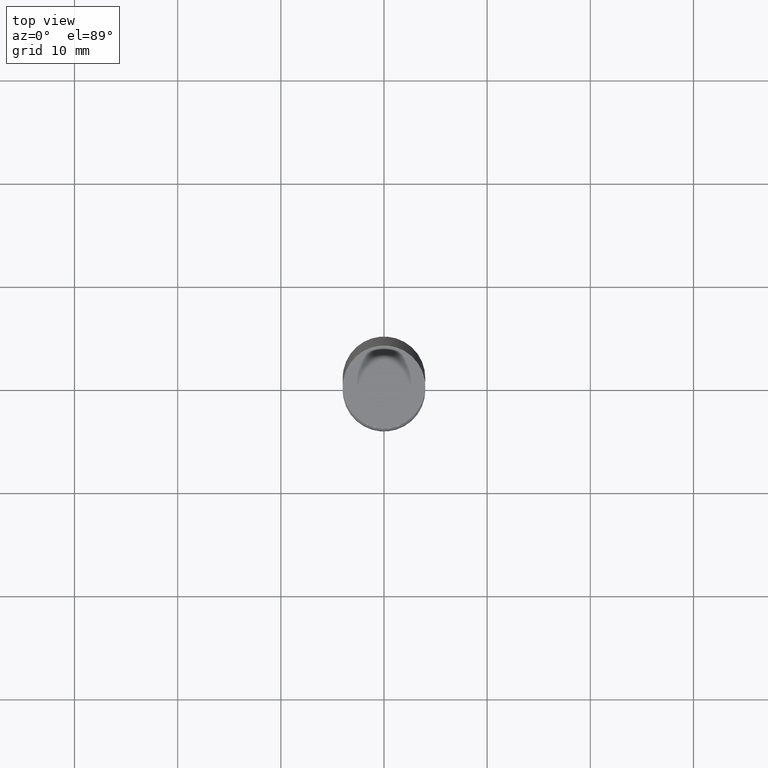
[diagram: clean part render]
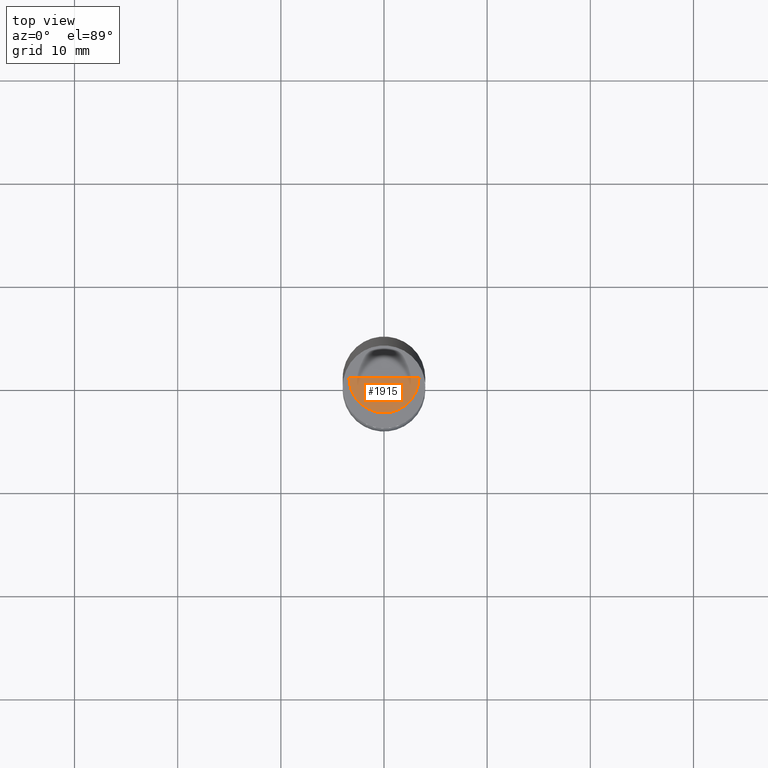
[diagram: same view with one face highlighted and labeled with its STEP entity id]
A machine part, top view. The second image highlights one B-rep face of the part: STEP entity #1915.
In plain terms, the highlighted face is a freeform B-spline surface patch.
Its self-contained STEP definition (entity closure, byte-faithful):
#1603=CARTESIAN_POINT('',(3.4,0.0,50.0));
#1607=CARTESIAN_POINT('',(-3.4,0.0,50.0));
#1608=CARTESIAN_POINT('',(0.0,0.0,50.0));
#1612=CARTESIAN_POINT('',(-3.4,-3.4,50.0));
#1613=CARTESIAN_POINT('',(0.0,-3.4,50.0));
#1614=CARTESIAN_POINT('',(3.4,-3.4,50.0));
#1900=(
BOUNDED_SURFACE()
B_SPLINE_SURFACE(1,2,(
(#1607,#1612,#1613,#1614,#1603),
(#1608,#1608,#1608,#1608,#1608)
), .UNSPECIFIED.,.F.,.F.,.F.)
B_SPLINE_SURFACE_WITH_KNOTS((2,2),(3,2,3),(
0.0,1.0),(
0.0,0.5,1.0), .UNSPECIFIED.)
GEOMETRIC_REPRESENTATION_ITEM()
RATIONAL_B_SPLINE_SURFACE(((1.0,0.707106781187,1.0,0.707106781187,1.0),
(1.0,0.707106781187,1.0,0.707106781187,1.0)
))
REPRESENTATION_ITEM('')
SURFACE()
);
#1901=(
BOUNDED_CURVE()
B_SPLINE_CURVE(1,(#1608,#1603),.UNSPECIFIED.,.F.,.F.)
B_SPLINE_CURVE_WITH_KNOTS((2,2),
(0.0,1.0),.UNSPECIFIED.)
CURVE()
GEOMETRIC_REPRESENTATION_ITEM()
RATIONAL_B_SPLINE_CURVE((1.0,1.0))
REPRESENTATION_ITEM('')
);
#1902=(
BOUNDED_CURVE()
B_SPLINE_CURVE(2,(#1603,#1614,#1613,#1612,#1607),.UNSPECIFIED.,.F.,.F.)
B_SPLINE_CURVE_WITH_KNOTS((3,2,3),
(0.0,0.5,1.0),.UNSPECIFIED.)
CURVE()
GEOMETRIC_REPRESENTATION_ITEM()
RATIONAL_B_SPLINE_CURVE((1.0,0.707106781187,1.0,0.707106781187,1.0))
REPRESENTATION_ITEM('')
);
#1903=(
BOUNDED_CURVE()
B_SPLINE_CURVE(1,(#1607,#1608),.UNSPECIFIED.,.F.,.F.)
B_SPLINE_CURVE_WITH_KNOTS((2,2),
(0.0,1.0),.UNSPECIFIED.)
CURVE()
GEOMETRIC_REPRESENTATION_ITEM()
RATIONAL_B_SPLINE_CURVE((1.0,1.0))
REPRESENTATION_ITEM('')
);
#1904=VERTEX_POINT('',#1603);
#1905=VERTEX_POINT('',#1607);
#1906=VERTEX_POINT('',#1608);
#1907=EDGE_CURVE('',#1906,#1904,#1901,.T.);
#1908=EDGE_CURVE('',#1904,#1905,#1902,.T.);
#1909=EDGE_CURVE('',#1905,#1906,#1903,.T.);
#1910=ORIENTED_EDGE('',*,*,#1907,.T.);
#1911=ORIENTED_EDGE('',*,*,#1908,.T.);
#1912=ORIENTED_EDGE('',*,*,#1909,.T.);
#1913=EDGE_LOOP('',(#1910,#1911,#1912));
#1914=FACE_OUTER_BOUND('',#1913,.T.);
#1915=ADVANCED_FACE('',(#1914),#1900,.T.);